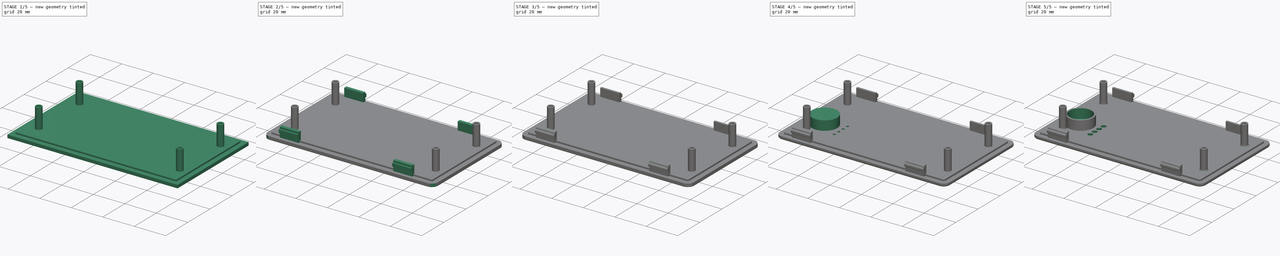
[diagram: build sequence overview — one tinted view per stage of 5, left to right]
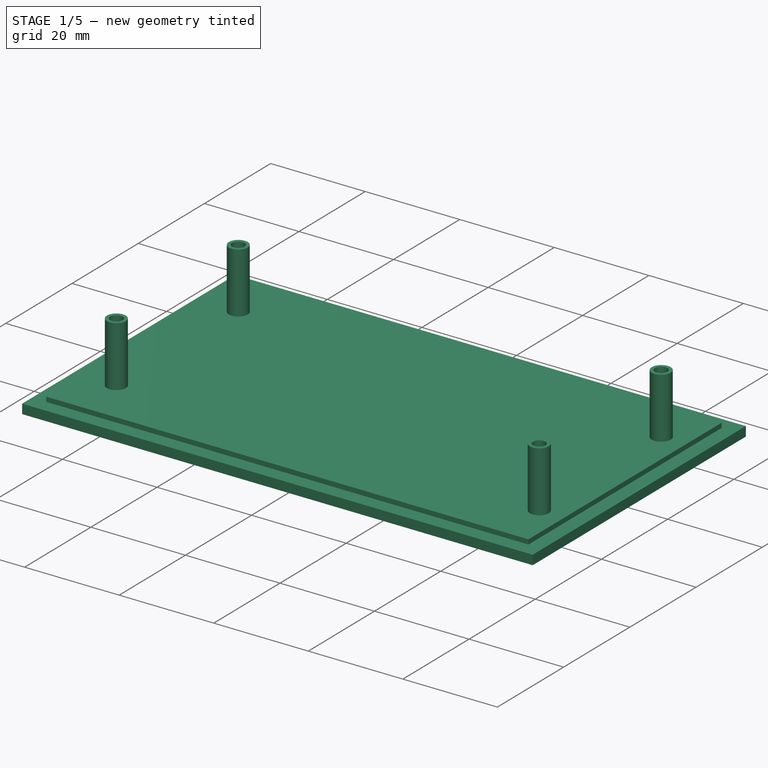
[diagram: stage 1 of 5 — iso view after this stage's code; geometry added in this stage tinted green]
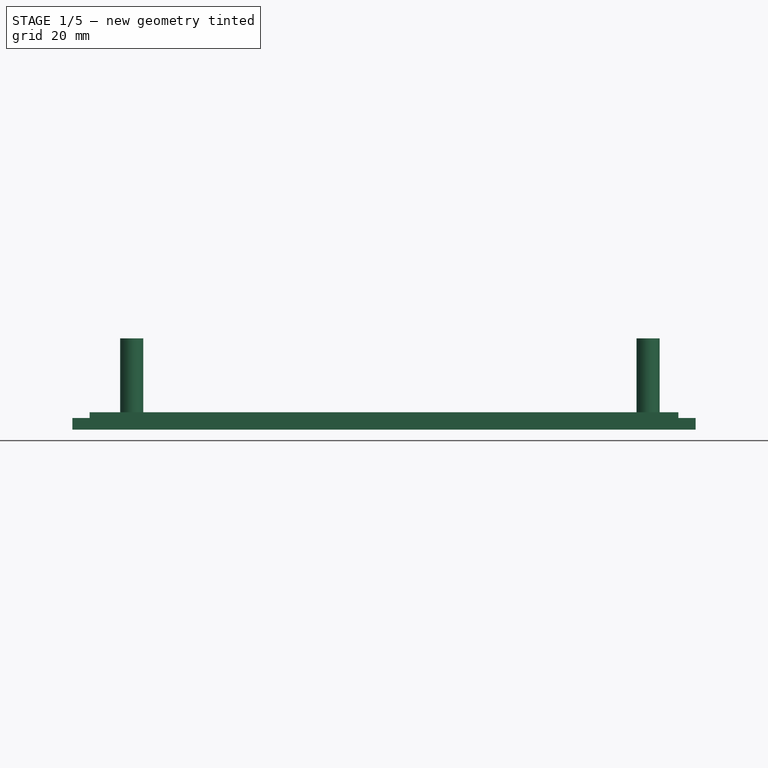
[diagram: stage 1 of 5 — front view after this stage's code; geometry added in this stage tinted green]
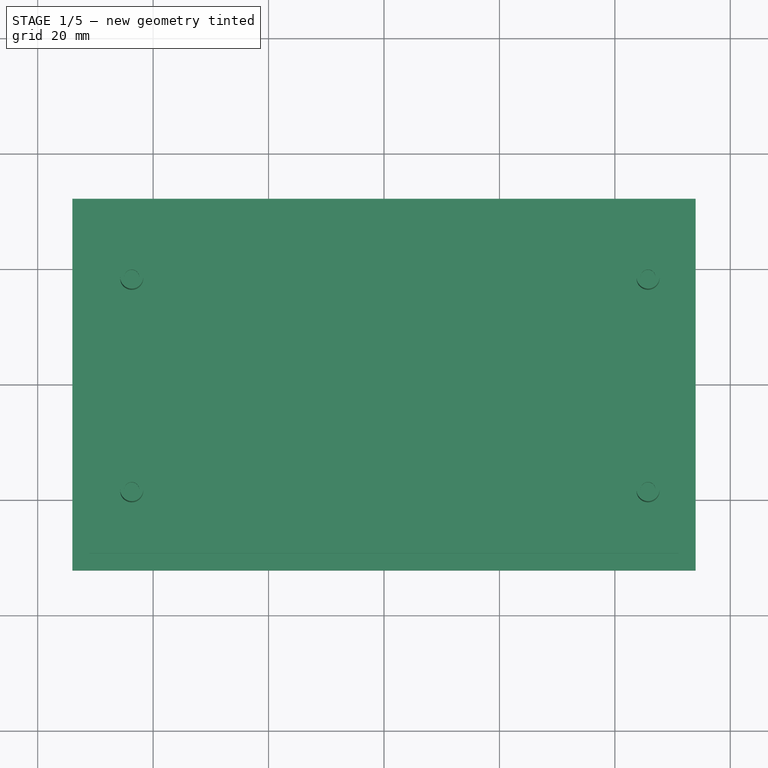
[diagram: stage 1 of 5 — top view after this stage's code; geometry added in this stage tinted green]
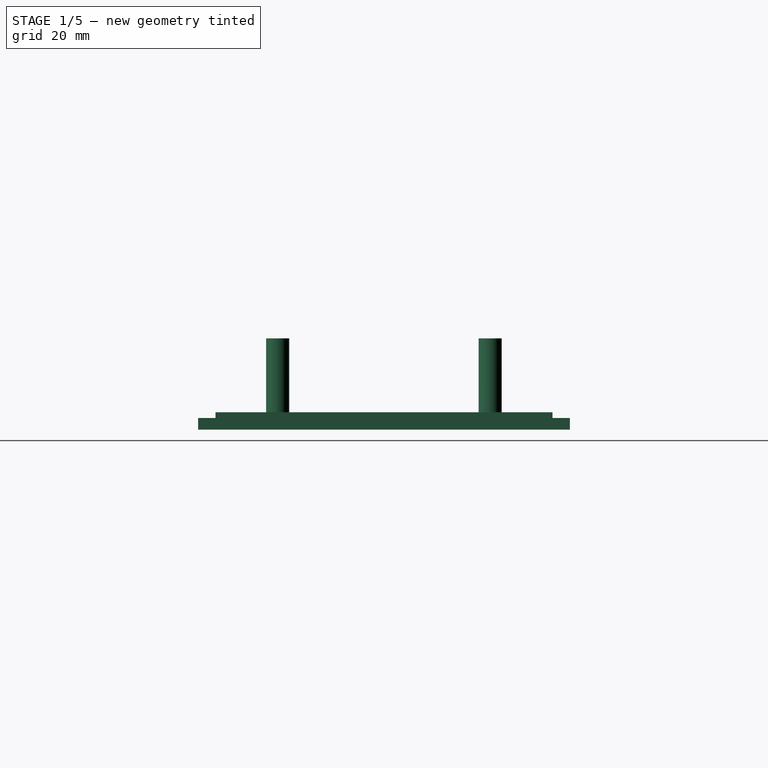
[diagram: stage 1 of 5 — right view after this stage's code; geometry added in this stage tinted green]
FCSTD DOCUMENT  (FreeCAD 0.17R13541 (Git))
Label: Case-Top-2
License: All rights reserved
LicenseURL: http://en.wikipedia.org/wiki/All_rights_reserved
objects: Sketcher::SketchObject×11, PartDesign::Pad×7, PartDesign::Fillet×7, Drawing::FeatureViewPart×6, PartDesign::Pocket×4, Drawing::FeatureViewPython×4, PartDesign::Chamfer×1, PartDesign::Body×1, Drawing::FeaturePage×1
note: 42 computed .brp shape members not serialized (recipe doc carries the construction recipe); baked Part::Feature solids carry a one-line shape summary decoded from their .brp

FEATURE [Sketcher::SketchObject] Sketch  label="Outer"
  MapMode = 5
  Support = -> [XY_Plane]
  sketch-geometry (8):
    g0: LineSegment [constr] StartX=-51 StartY=29.2 StartZ=0 EndX=51 EndY=29.2 EndZ=0
    g1: LineSegment [constr] StartX=51 StartY=29.2 StartZ=0 EndX=51 EndY=-29.2 EndZ=0
    g2: LineSegment [constr] StartX=51 StartY=-29.2 StartZ=0 EndX=-51 EndY=-29.2 EndZ=0
    g3: LineSegment [constr] StartX=-51 StartY=-29.2 StartZ=0 EndX=-51 EndY=29.2 EndZ=0
    g4: LineSegment StartX=-54 StartY=32.2 StartZ=0 EndX=54 EndY=32.2 EndZ=0
    g5: LineSegment StartX=54 StartY=32.2 StartZ=0 EndX=54 EndY=-32.2 EndZ=0
    g6: LineSegment StartX=54 StartY=-32.2 StartZ=0 EndX=-54 EndY=-32.2 EndZ=0
    g7: LineSegment StartX=-54 StartY=-32.2 StartZ=0 EndX=-54 EndY=32.2 EndZ=0
  constraints (24):
    c: Coincident(g0,g1)
    c: Coincident(g1,g2)
    c: Coincident(g2,g3)
    c: Coincident(g3,g0)
    c: Horizontal(g0)
    c: Horizontal(g2)
    c: Vertical(g1)
    c: Vertical(g3)
    c: Symmetric(g0,g0,g-2)
    c: Symmetric(g0,g1,g-1)
    c: Distance(g0) = 102
    c: DistanceY(g1,g1) = 58.4
    c: Coincident(g4,g5)
    c: Coincident(g5,g6)
    c: Coincident(g6,g7)
    c: Coincident(g7,g4)
    c: Horizontal(g4)
    c: Horizontal(g6)
    c: Vertical(g5)
    c: Vertical(g7)
    c: Symmetric(g4,g4,g-2)
    c: Symmetric(g4,g5,g-1)
    c: DistanceX(g4,g0) = 3
    c: DistanceY(g0,g4) = 3
FEATURE [PartDesign::Pad] Pad
  Length = 2
  Length2 = 100
  Profile = -> Sketch
  Type = 0
FEATURE [Sketcher::SketchObject] Sketch001  label="Inner"
  ExternalGeometry = -> [Pad]
  MapMode = 5
  Placement = pos=(0,0,2) rot=(0,0,1;0rad)
  Support = -> [Pad]
  sketch-geometry (4):
    g0: LineSegment StartX=-51 StartY=29.2 StartZ=0 EndX=51 EndY=29.2 EndZ=0
    g1: LineSegment StartX=51 StartY=29.2 StartZ=0 EndX=51 EndY=-29.2 EndZ=0
    g2: LineSegment StartX=51 StartY=-29.2 StartZ=0 EndX=-51 EndY=-29.2 EndZ=0
    g3: LineSegment StartX=-51 StartY=-29.2 StartZ=0 EndX=-51 EndY=29.2 EndZ=0
  constraints (12):
    c: Coincident(g0,g1)
    c: Coincident(g1,g2)
    c: Coincident(g2,g3)
    c: Coincident(g3,g0)
    c: Horizontal(g0)
    c: Horizontal(g2)
    c: Vertical(g1)
    c: Vertical(g3)
    c: Symmetric(g0,g0,g-2)
    c: Symmetric(g0,g1,g-1)
    c: DistanceX(g-3,g0) = 3
    c: DistanceY(g0,g-3) = 3
FEATURE [PartDesign::Pad] Pad001
  BaseFeature = -> Pad
  Length = 1
  Length2 = 100
  Profile = -> Sketch001
  Type = 0
FEATURE [Sketcher::SketchObject] Sketch002  label="PCB-Supporter"
  ExternalGeometry = -> [Pad001]
  MapMode = 5
  Placement = pos=(0,0,3) rot=(0,0,1;0rad)
  Support = -> [Pad001]
  sketch-geometry (4):
    g0: Circle CenterX=-43.71 CenterY=18.4 CenterZ=0 NormalX=0 NormalY=0 NormalZ=1 AngleXU=0 Radius=2
    g1: Circle CenterX=45.75 CenterY=18.4 CenterZ=0 NormalX=0 NormalY=0 NormalZ=1 AngleXU=0 Radius=2
    g2: Circle CenterX=-43.71 CenterY=-18.425 CenterZ=0 NormalX=0 NormalY=0 NormalZ=1 AngleXU=0 Radius=2
    g3: Circle CenterX=45.75 CenterY=-18.425 CenterZ=0 NormalX=0 NormalY=0 NormalZ=1 AngleXU=0 Radius=2
  constraints (12):
    c: Equal(g0,g1)
    c: Equal(g1,g3)
    c: Equal(g3,g2)
    c: Radius(g1) = 2
    c: Vertical(g0,g2)
    c: Vertical(g1,g3)
    c: Horizontal(g0,g1)
    c: Horizontal(g2,g3)
    c: DistanceX(g-4,g0) = 7.29
    c: DistanceX(g-4,g1) = 96.75
    c: DistanceY(g0,g-4) = 10.8
    c: DistanceY(g2,g-4) = 47.625
FEATURE [PartDesign::Pad] Pad002
  BaseFeature = -> Pad001
  Length = 12.8
  Length2 = 100
  Profile = -> Sketch002
  Type = 0
FEATURE [Sketcher::SketchObject] Sketch003  label="PCB-Hole"
  AttachmentOffset = pos=(0,0,16.8) rot=(0,0,1;0rad)
  ExternalGeometry = -> [Pad002]
  MapMode = 5
  Placement = pos=(0,0,16.8) rot=(0,0,1;0rad)
  Support = -> [XY_Plane]
  sketch-geometry (4):
    g0: Circle CenterX=-43.71 CenterY=18.4 CenterZ=0 NormalX=0 NormalY=0 NormalZ=1 AngleXU=0 Radius=1.3
    g1: Circle CenterX=45.75 CenterY=18.4 CenterZ=0 NormalX=0 NormalY=0 NormalZ=1 AngleXU=0 Radius=1.3
    g2: Circle CenterX=45.75 CenterY=-18.425 CenterZ=0 NormalX=0 NormalY=0 NormalZ=1 AngleXU=0 Radius=1.3
    g3: Circle CenterX=-43.71 CenterY=-18.425 CenterZ=0 NormalX=0 NormalY=0 NormalZ=1 AngleXU=0 Radius=1.3
  constraints (8):
    c: Coincident(g1,g-4)
    c: Coincident(g2,g-6)
    c: Coincident(g3,g-5)
    c: Coincident(g0,g-3)
    c: Radius(g0) = 1.3
    c: Equal(g0,g3)
    c: Equal(g0,g1)
    c: Equal(g0,g2)
FEATURE [PartDesign::Pocket] Pocket
  BaseFeature = -> Pad002
  Length = 4
  Length2 = 100
  Profile = -> Sketch003
  Type = 0
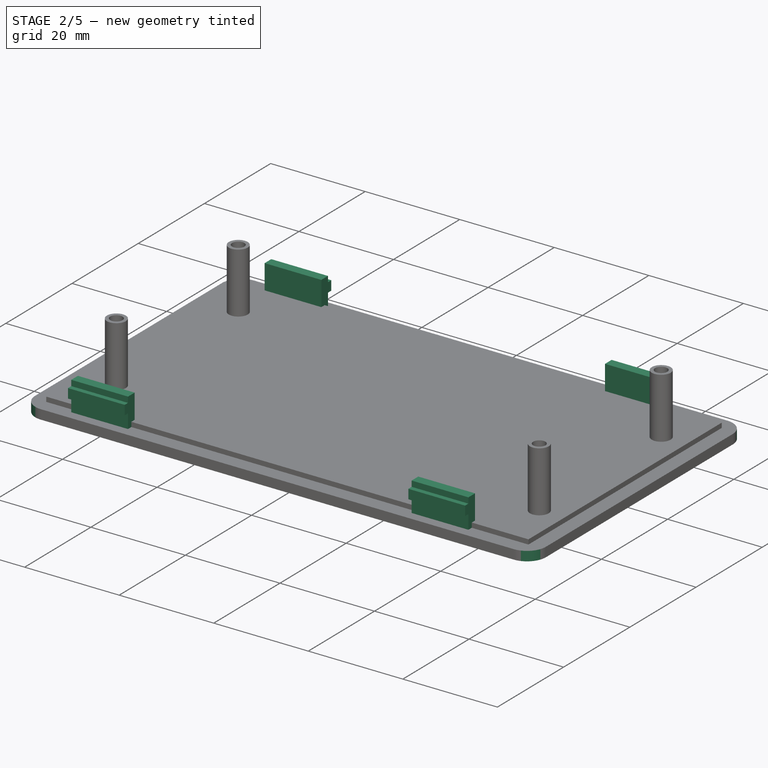
[diagram: stage 2 of 5 — iso view after this stage's code; geometry added in this stage tinted green]
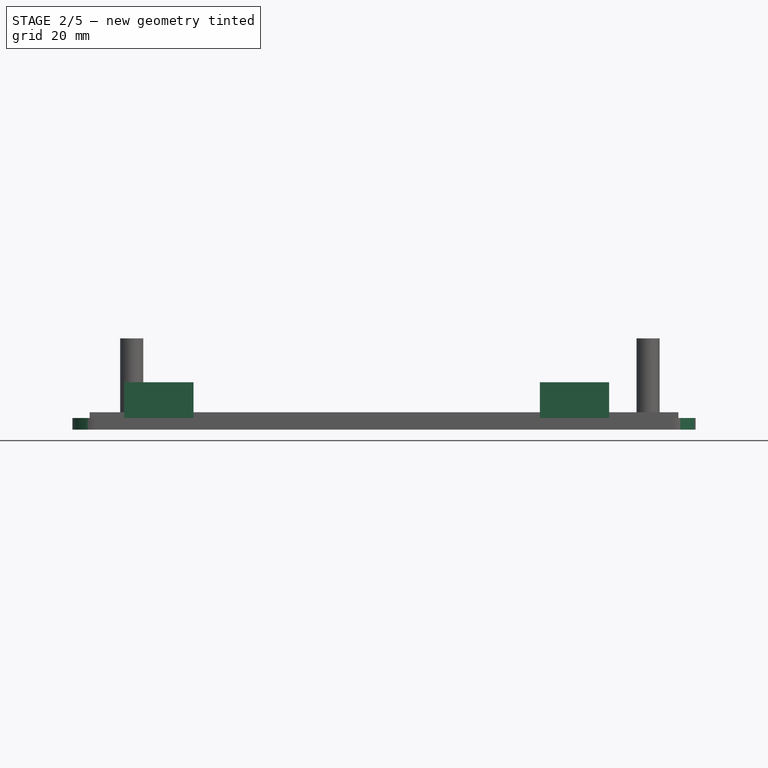
[diagram: stage 2 of 5 — front view after this stage's code; geometry added in this stage tinted green]
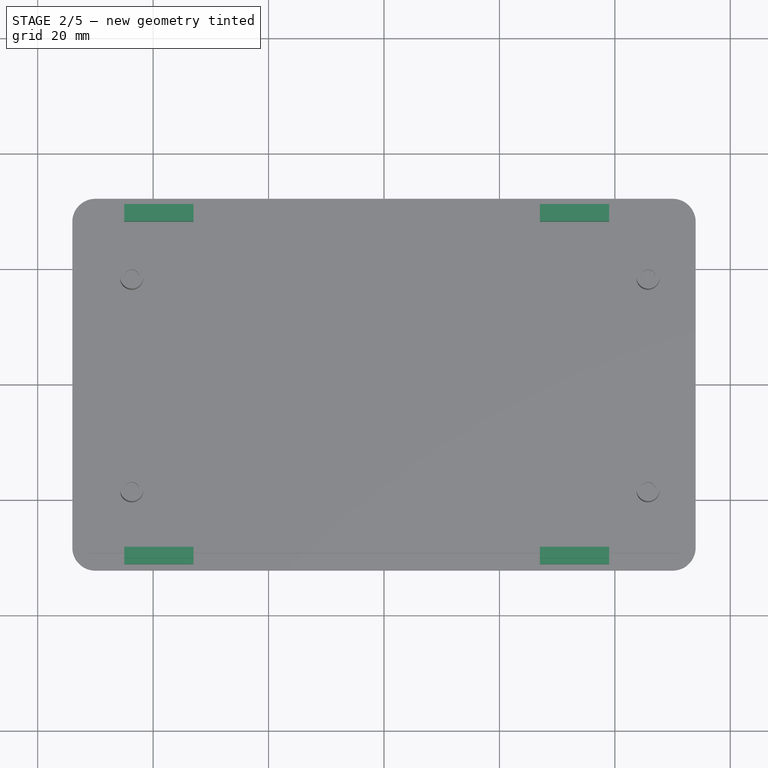
[diagram: stage 2 of 5 — top view after this stage's code; geometry added in this stage tinted green]
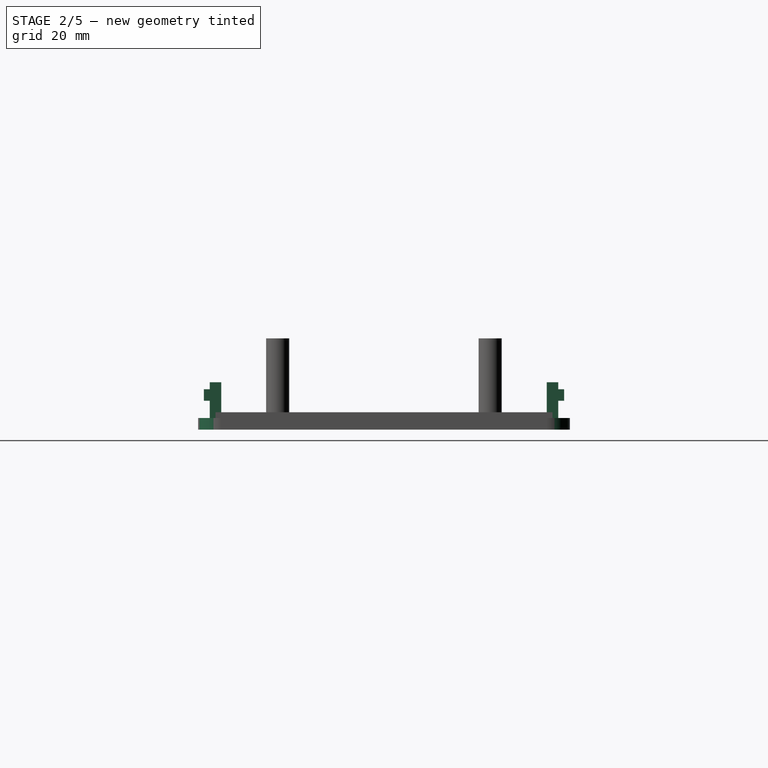
[diagram: stage 2 of 5 — right view after this stage's code; geometry added in this stage tinted green]
FEATURE [Sketcher::SketchObject] Sketch004  label="Locking-Bar"
  AttachmentOffset = pos=(0,0,-1) rot=(0,0,1;0rad)
  ExternalGeometry = -> [Pocket]
  MapMode = 5
  Placement = pos=(0,0,2) rot=(0,0,1;0rad)
  Support = -> [Pocket]
  sketch-geometry (16):
    g0: LineSegment StartX=-45 StartY=30.2 StartZ=0 EndX=-33 EndY=30.2 EndZ=0
    g1: LineSegment StartX=-33 StartY=30.2 StartZ=0 EndX=-33 EndY=28.2 EndZ=0
    g2: LineSegment StartX=-33 StartY=28.2 StartZ=0 EndX=-45 EndY=28.2 EndZ=0
    g3: LineSegment StartX=-45 StartY=28.2 StartZ=0 EndX=-45 EndY=30.2 EndZ=0
    g4: LineSegment StartX=27 StartY=30.2 StartZ=0 EndX=39 EndY=30.2 EndZ=0
    g5: LineSegment StartX=39 StartY=30.2 StartZ=0 EndX=39 EndY=28.2 EndZ=0
    g6: LineSegment StartX=39 StartY=28.2 StartZ=0 EndX=27 EndY=28.2 EndZ=0
    g7: LineSegment StartX=27 StartY=28.2 StartZ=0 EndX=27 EndY=30.2 EndZ=0
    g8: LineSegment StartX=-45 StartY=-28.2 StartZ=0 EndX=-33 EndY=-28.2 EndZ=0
    g9: LineSegment StartX=-33 StartY=-28.2 StartZ=0 EndX=-33 EndY=-30.2 EndZ=0
    g10: LineSegment StartX=-33 StartY=-30.2 StartZ=0 EndX=-45 EndY=-30.2 EndZ=0
    g11: LineSegment StartX=-45 StartY=-30.2 StartZ=0 EndX=-45 EndY=-28.2 EndZ=0
    g12: LineSegment StartX=27 StartY=-28.2 StartZ=0 EndX=39 EndY=-28.2 EndZ=0
    g13: LineSegment StartX=39 StartY=-28.2 StartZ=0 EndX=39 EndY=-30.2 EndZ=0
    g14: LineSegment StartX=39 StartY=-30.2 StartZ=0 EndX=27 EndY=-30.2 EndZ=0
    g15: LineSegment StartX=27 StartY=-30.2 StartZ=0 EndX=27 EndY=-28.2 EndZ=0
  constraints (48):
    c: Coincident(g0,g1)
    c: Coincident(g1,g2)
    c: Coincident(g2,g3)
    c: Coincident(g3,g0)
    c: Horizontal(g0)
    c: Horizontal(g2)
    c: Vertical(g1)
    c: Vertical(g3)
    c: Coincident(g4,g5)
    c: Coincident(g5,g6)
    c: Coincident(g6,g7)
    c: Coincident(g7,g4)
    c: Horizontal(g4)
    c: Horizontal(g6)
    c: Vertical(g5)
    c: Vertical(g7)
    c: Coincident(g8,g9)
    c: Coincident(g9,g10)
    c: Coincident(g10,g11)
    c: Coincident(g11,g8)
    c: Horizontal(g8)
    c: Horizontal(g10)
    c: Vertical(g9)
    c: Vertical(g11)
    c: Coincident(g12,g13)
    c: Coincident(g13,g14)
    c: Coincident(g14,g15)
    c: Coincident(g15,g12)
    c: Horizontal(g12)
    c: Horizontal(g14)
    c: Vertical(g13)
    c: Vertical(g15)
    c: Equal(g0,g4)
    c: Equal(g4,g12)
    c: Equal(g12,g8)
    c: Equal(g1,g5)
    c: Equal(g5,g13)
    c: Equal(g13,g9)
    c: DistanceY(g3,g3) = 2
    c: DistanceX(g0,g0) = 12
    c: DistanceX(g4,g-3) = 12
    c: DistanceX(g0,g-3) = 84
    c: Vertical(g1,g8)
    c: Vertical(g5,g13)
    c: DistanceY(g-4,g10) = -1
    c: DistanceY(g-3,g0) = 1
    c: Horizontal(g9,g14)
    c: Horizontal(g1,g6)
FEATURE [PartDesign::Pad] Pad003
  BaseFeature = -> Pocket
  Length = 6.2
  Length2 = 100
  Profile = -> Sketch004
  Type = 0
FEATURE [Sketcher::SketchObject] Sketch005  label="Locking-Bump-L"
  ExternalGeometry = -> [Pad003]
  MapMode = 5
  Placement = pos=(0,-30.2,0) rot=(1,0,0;1.5708rad)
  Support = -> [Pad003]
  sketch-geometry (8):
    g0: LineSegment StartX=39 StartY=7 StartZ=0 EndX=27 EndY=7 EndZ=0
    g1: LineSegment StartX=27 StartY=7 StartZ=0 EndX=27 EndY=5 EndZ=0
    g2: LineSegment StartX=27 StartY=5 StartZ=0 EndX=39 EndY=5 EndZ=0
    g3: LineSegment StartX=39 StartY=5 StartZ=0 EndX=39 EndY=7 EndZ=0
    g4: LineSegment StartX=-33 StartY=7 StartZ=0 EndX=-45 EndY=7 EndZ=0
    g5: LineSegment StartX=-45 StartY=7 StartZ=0 EndX=-45 EndY=5 EndZ=0
    g6: LineSegment StartX=-45 StartY=5 StartZ=0 EndX=-33 EndY=5 EndZ=0
    g7: LineSegment StartX=-33 StartY=5 StartZ=0 EndX=-33 EndY=7 EndZ=0
  constraints (24):
    c: Coincident(g0,g1)
    c: Coincident(g1,g2)
    c: Coincident(g2,g3)
    c: Coincident(g3,g0)
    c: Horizontal(g0)
    c: Horizontal(g2)
    c: Vertical(g1)
    c: Vertical(g3)
    c: Coincident(g4,g5)
    c: Coincident(g5,g6)
    c: Coincident(g6,g7)
    c: Coincident(g7,g4)
    c: Horizontal(g4)
    c: Horizontal(g6)
    c: Vertical(g5)
    c: Vertical(g7)
    c: Equal(g1,g7)
    c: DistanceY(g5,g5) = 2
    c: Horizontal(g1,g6)
    c: DistanceY(g-3,g1) = 2
    c: Vertical(g5,g-4)
    c: Vertical(g6,g-4)
    c: Vertical(g1,g-3)
    c: Vertical(g-3,g2)
FEATURE [PartDesign::Pad] Pad004
  BaseFeature = -> Pad003
  Length = 1
  Length2 = 100
  Profile = -> Sketch005
  Type = 0
FEATURE [Sketcher::SketchObject] Sketch006  label="Locking-Bump-R"
  ExternalGeometry = -> [Pad004]
  MapMode = 5
  Placement = pos=(0,30.2,0) rot=(0,0.707107,0.707107;3.14159rad)
  sketch-geometry (8):
    g0: LineSegment StartX=-39 StartY=7 StartZ=0 EndX=-27 EndY=7 EndZ=0
    g1: LineSegment StartX=-27 StartY=7 StartZ=0 EndX=-27 EndY=5 EndZ=0
    g2: LineSegment StartX=-27 StartY=5 StartZ=0 EndX=-39 EndY=5 EndZ=0
    g3: LineSegment StartX=-39 StartY=5 StartZ=0 EndX=-39 EndY=7 EndZ=0
    g4: LineSegment StartX=33 StartY=7 StartZ=0 EndX=45 EndY=7 EndZ=0
    g5: LineSegment StartX=45 StartY=7 StartZ=0 EndX=45 EndY=5 EndZ=0
    g6: LineSegment StartX=45 StartY=5 StartZ=0 EndX=33 EndY=5 EndZ=0
    g7: LineSegment StartX=33 StartY=5 StartZ=0 EndX=33 EndY=7 EndZ=0
  constraints (24):
    c: Coincident(g0,g1)
    c: Coincident(g1,g2)
    c: Coincident(g2,g3)
    c: Coincident(g3,g0)
    c: Horizontal(g0)
    c: Horizontal(g2)
    c: Vertical(g1)
    c: Vertical(g3)
    c: Coincident(g4,g5)
    c: Coincident(g5,g6)
    c: Coincident(g6,g7)
    c: Coincident(g7,g4)
    c: Horizontal(g4)
    c: Horizontal(g6)
    c: Vertical(g5)
    c: Vertical(g7)
    c: Vertical(g2,g-3)
    c: Vertical(g-3,g1)
    c: Vertical(g-4,g6)
    c: Vertical(g-4,g5)
    c: Horizontal(g1,g6)
    c: Equal(g3,g5)
    c: DistanceY(g3,g3) = 2
    c: DistanceY(g-3,g1) = 2
FEATURE [PartDesign::Pad] Pad005
  BaseFeature = -> Pad004
  Length = 1
  Length2 = 100
  Profile = -> Sketch006
  Type = 0
FEATURE [PartDesign::Fillet] Fillet  label="Fillet-Outer"
  Base = -> Pad005 [Edge1,Edge2,Edge5,Edge8]
  BaseFeature = -> Pad005
  Radius = 4
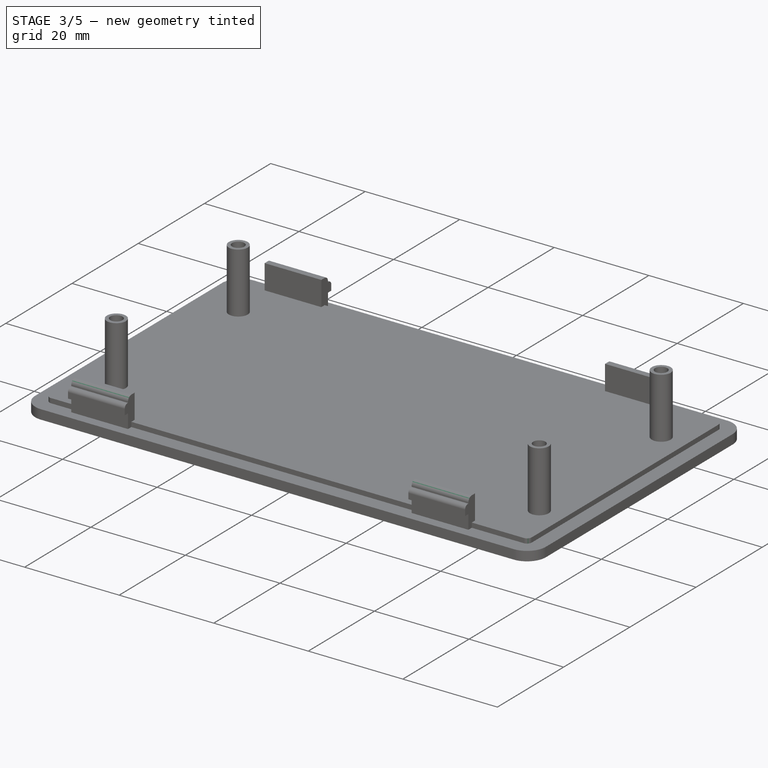
[diagram: stage 3 of 5 — iso view after this stage's code; geometry added in this stage tinted green]
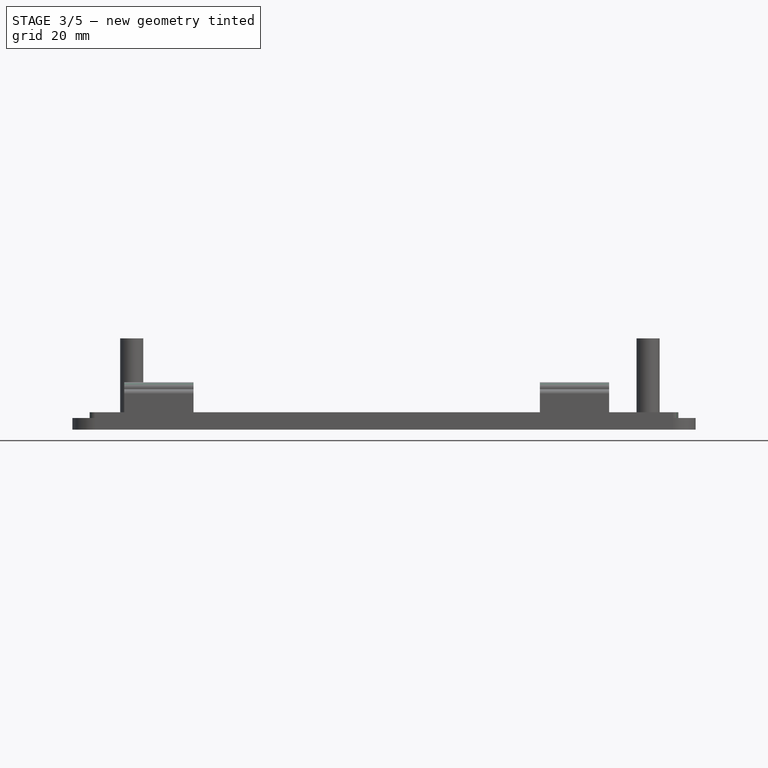
[diagram: stage 3 of 5 — front view after this stage's code; geometry added in this stage tinted green]
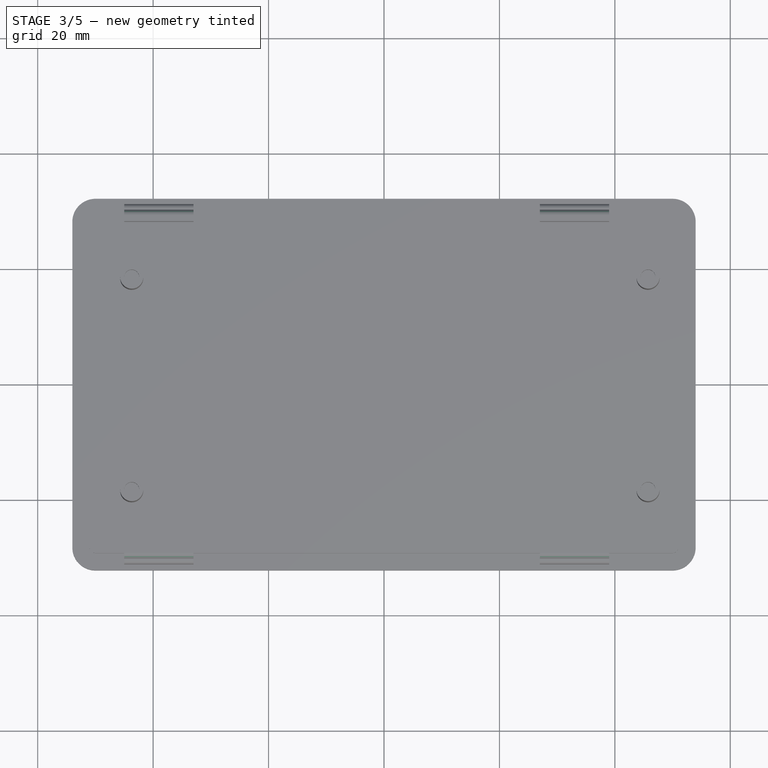
[diagram: stage 3 of 5 — top view after this stage's code; geometry added in this stage tinted green]
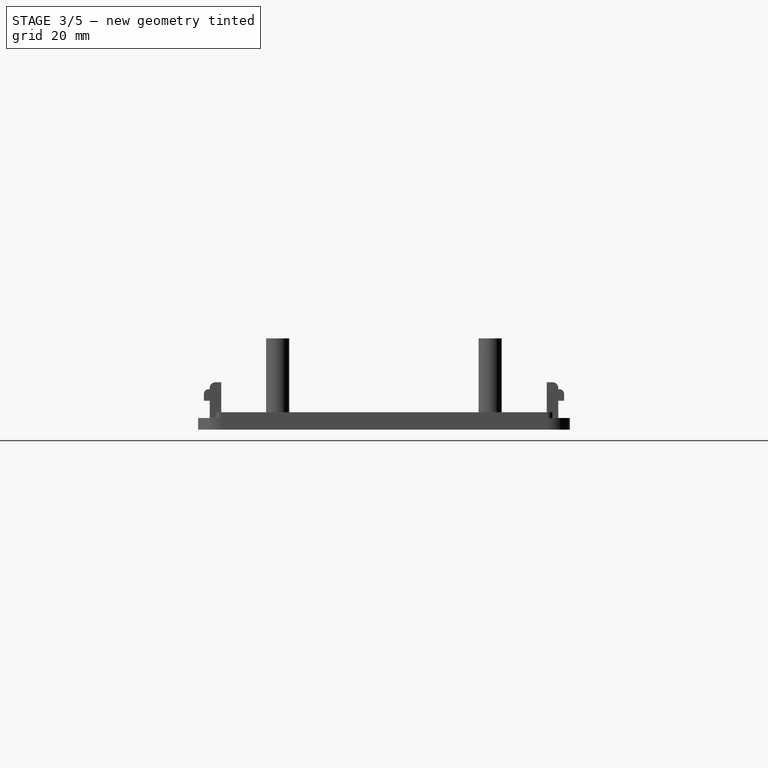
[diagram: stage 3 of 5 — right view after this stage's code; geometry added in this stage tinted green]
FEATURE [PartDesign::Fillet] Fillet001  label="Fillet-Inner"
  Base = -> Fillet [Edge47,Edge114,Edge81,Edge78]
  BaseFeature = -> Fillet
  Radius = 1
FEATURE [PartDesign::Fillet] Fillet002  label="Fillet-Locking-Bar"
  Base = -> Fillet001 [Edge151,Edge171,Edge154,Edge138]
  BaseFeature = -> Fillet001
  Radius = 1
FEATURE [PartDesign::Fillet] Fillet003  label="Fillet-Locking-Bump-Up"
  Base = -> Fillet002 [Edge85,Edge204,Edge202,Edge203]
  BaseFeature = -> Fillet002
  Radius = 0.8
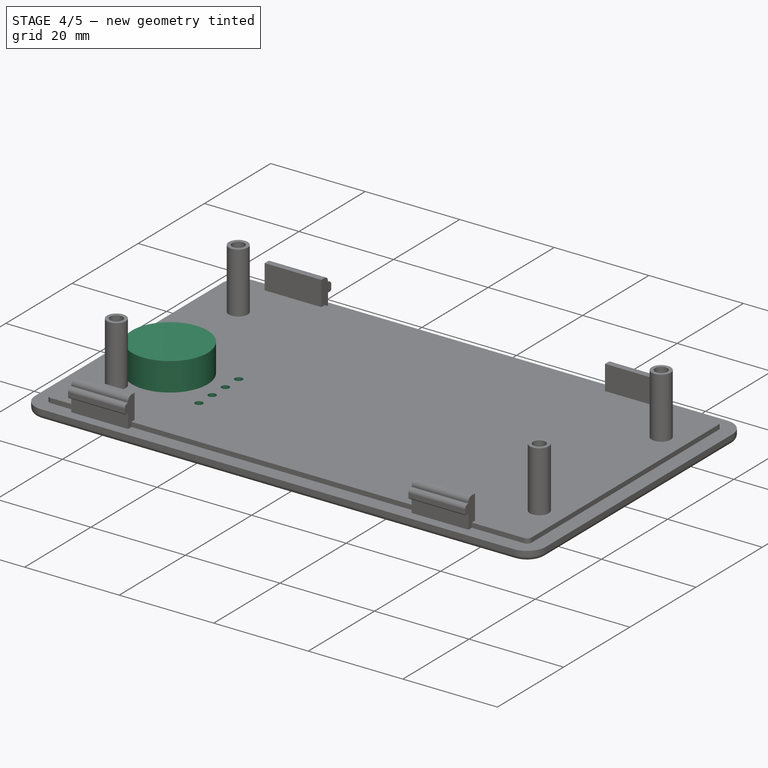
[diagram: stage 4 of 5 — iso view after this stage's code; geometry added in this stage tinted green]
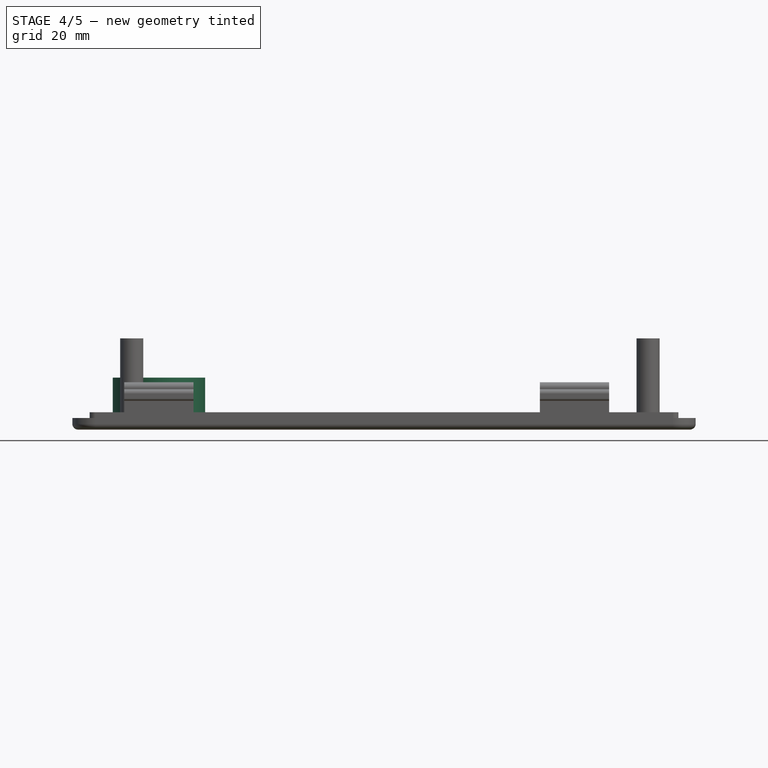
[diagram: stage 4 of 5 — front view after this stage's code; geometry added in this stage tinted green]
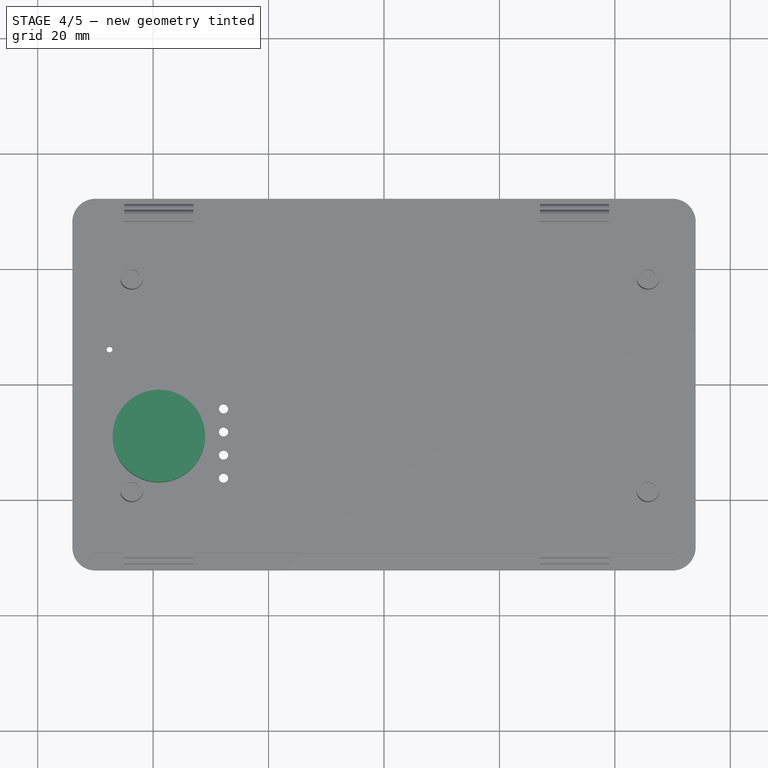
[diagram: stage 4 of 5 — top view after this stage's code; geometry added in this stage tinted green]
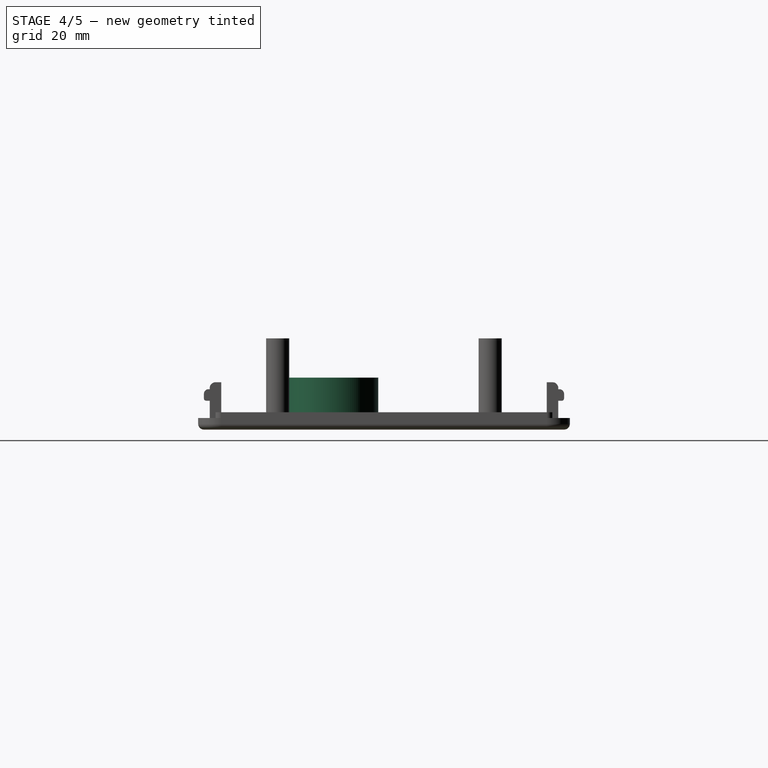
[diagram: stage 4 of 5 — right view after this stage's code; geometry added in this stage tinted green]
FEATURE [PartDesign::Fillet] Fillet004  label="Fillet-Locking-Bump-Bottom"
  Base = -> Fillet003 [Edge210,Edge208,Edge19,Edge209]
  BaseFeature = -> Fillet003
  Radius = 0.4
FEATURE [PartDesign::Fillet] Fillet005  label="Fillet-Top"
  Base = -> Fillet004 [Edge173]
  BaseFeature = -> Fillet004
  Radius = 1
FEATURE [Sketcher::SketchObject] Sketch007  label="Top-Hole"
  ExternalGeometry = -> [Fillet005]
  MapMode = 5
  Placement = pos=(0,0,3) rot=(0,0,1;0rad)
  Support = -> [Fillet005]
  sketch-geometry (20):
    g0: Circle CenterX=-39 CenterY=-9 CenterZ=0 NormalX=0 NormalY=0 NormalZ=1 AngleXU=0 Radius=1.2
    g1: Circle CenterX=-27.8 CenterY=-4.2 CenterZ=0 NormalX=0 NormalY=0 NormalZ=1 AngleXU=0 Radius=0.8
    g2: Circle CenterX=-27.8 CenterY=-8.2 CenterZ=0 NormalX=0 NormalY=0 NormalZ=1 AngleXU=0 Radius=0.8
    g3: Circle CenterX=-27.8 CenterY=-12.2 CenterZ=0 NormalX=0 NormalY=0 NormalZ=1 AngleXU=0 Radius=0.8
    g4: Circle CenterX=-27.8 CenterY=-16.2 CenterZ=0 NormalX=0 NormalY=0 NormalZ=1 AngleXU=0 Radius=0.8
    g5: Circle CenterX=-47.56 CenterY=6.08 CenterZ=0 NormalX=0 NormalY=0 NormalZ=1 AngleXU=0 Radius=0.5
    g6: Circle CenterX=-41.5981 CenterY=-7.5 CenterZ=0 NormalX=0 NormalY=0 NormalZ=1 AngleXU=0 Radius=0.6
    g7: Circle CenterX=-39 CenterY=-6 CenterZ=0 NormalX=0 NormalY=0 NormalZ=1 AngleXU=0 Radius=0.6
    g8: Circle CenterX=-36.4019 CenterY=-10.5 CenterZ=0 NormalX=0 NormalY=0 NormalZ=1 AngleXU=0 Radius=0.6
    g9: Circle CenterX=-41.5981 CenterY=-10.5 CenterZ=0 NormalX=0 NormalY=0 NormalZ=1 AngleXU=0 Radius=0.6
    g10: LineSegment [constr] StartX=-36.4019 StartY=-10.5 StartZ=0 EndX=-36.4019 EndY=-7.5 EndZ=0
    g11: LineSegment [constr] StartX=-36.4019 StartY=-7.5 StartZ=0 EndX=-39 EndY=-6 EndZ=0
    g12: LineSegment [constr] StartX=-39 StartY=-6 StartZ=0 EndX=-41.5981 EndY=-7.5 EndZ=0
    g13: LineSegment [constr] StartX=-41.5981 StartY=-7.5 StartZ=0 EndX=-41.5981 EndY=-10.5 EndZ=0
    g14: LineSegment [constr] StartX=-41.5981 StartY=-10.5 StartZ=0 EndX=-39 EndY=-12 EndZ=0
    g15: LineSegment [constr] StartX=-39 StartY=-12 StartZ=0 EndX=-36.4019 EndY=-10.5 EndZ=0
    g16: Circle CenterX=-39 CenterY=-12 CenterZ=0 NormalX=0 NormalY=0 NormalZ=1 AngleXU=0 Radius=0.6
    g17: Circle CenterX=-36.4019 CenterY=-7.5 CenterZ=0 NormalX=0 NormalY=0 NormalZ=1 AngleXU=0 Radius=0.6
    g18: LineSegment [constr] StartX=-39 StartY=-9 StartZ=0 EndX=-41.5981 EndY=-10.5 EndZ=0
    g19: Circle [constr] CenterX=-39 CenterY=-9 CenterZ=0 NormalX=0 NormalY=0 NormalZ=1 AngleXU=0 Radius=3
  constraints (48):
    c: DistanceX(g0,g-6) = 90
    c: DistanceY(g-5,g0) = 20.2
    c: Vertical(g1,g2)
    c: Vertical(g2,g3)
    c: Vertical(g3,g4)
    c: Radius(g1) = 0.8
    c: Equal(g1,g2)
    c: Equal(g1,g3)
    c: Equal(g1,g4)
    c: DistanceX(g4,g-6) = 78.8
    c: DistanceY(g-5,g4) = 13
    c: DistanceY(g4,g3) = 4
    c: DistanceY(g3,g2) = 4
    c: DistanceY(g2,g1) = 4
    c: DistanceX(g5,g-6) = 98.56
    c: DistanceY(g-5,g5) = 35.28
    c: Radius(g0) = 1.2
    c: Radius(g5) = 0.5
    c: Radius(g7) = 0.6
    c: Equal(g7,g9)
    c: Coincident(g10,g11)
    c: Coincident(g11,g12)
    c: Coincident(g12,g13)
    c: Coincident(g13,g14)
    c: Coincident(g14,g15)
    c: Coincident(g15,g10)
    c: Equal(g10, g11-g15) x5
    c: Coincident(g7,g11)
    c: Coincident(g6,g12)
    c: Coincident(g9,g13)
    c: Coincident(g8,g10)
    c: Coincident(g16,g14)
    c: Coincident(g17,g10)
    c: Equal(g6,g7)
    c: Equal(g7,g17)
    c: Equal(g17,g8)
    c: Equal(g8,g16)
    c: Vertical(g14,g0)
    c: Coincident(g18,g0)
    c: Coincident(g18,g9)
    c: Distance(g18) = 3
    c: Coincident(g0,g19)
    c: PointOnObject(g10,g19)
    c: PointOnObject(g7,g19)
    c: PointOnObject(g6,g19)
    c: PointOnObject(g9,g19)
    c: PointOnObject(g14,g19)
    c: PointOnObject(g8,g19)
FEATURE [PartDesign::Pocket] Pocket001
  BaseFeature = -> Fillet005
  Length = 5
  Length2 = 100
  Profile = -> Sketch007
  Type = 1
FEATURE [Sketcher::SketchObject] Sketch009  label="Buzzer-Inner"
  ExternalGeometry = -> [Pocket001]
  MapMode = 5
  Placement = pos=(0,0,9) rot=(0,0,1;0rad)
  sketch-geometry (1):
    g0: Circle CenterX=-39 CenterY=-9 CenterZ=0 NormalX=0 NormalY=0 NormalZ=1 AngleXU=0 Radius=7
  constraints (2):
    c: Radius(g0) = 7
    c: Coincident(g0,g-3)
FEATURE [Sketcher::SketchObject] Sketch010  label="LED-Sunken"
  MapMode = 5
  Placement = pos=(0,0,3) rot=(0,0,1;0rad)
  sketch-geometry (4):
    g0: Circle CenterX=-27.8 CenterY=-4.2 CenterZ=0 NormalX=0 NormalY=0 NormalZ=1 AngleXU=0 Radius=1.5
    g1: Circle CenterX=-27.8 CenterY=-8.2 CenterZ=0 NormalX=0 NormalY=0 NormalZ=1 AngleXU=0 Radius=1.5
    g2: Circle CenterX=-27.8 CenterY=-12.2 CenterZ=0 NormalX=0 NormalY=0 NormalZ=1 AngleXU=0 Radius=1.5
    g3: Circle CenterX=-27.8 CenterY=-16.2 CenterZ=0 NormalX=0 NormalY=0 NormalZ=1 AngleXU=0 Radius=1.5
  constraints (4):
    c: Radius(g0) = 1.5
    c: Equal(g0,g1)
    c: Equal(g0,g2)
    c: Equal(g0,g3)
FEATURE [Sketcher::SketchObject] Sketch011  label="Buzzer-Outer"
  ExternalGeometry = -> [Pocket001]
  MapMode = 5
  Placement = pos=(0,0,3) rot=(0,0,1;0rad)
  Support = -> [Pocket001]
  sketch-geometry (1):
    g0: Circle CenterX=-39 CenterY=-9 CenterZ=0 NormalX=0 NormalY=0 NormalZ=1 AngleXU=0 Radius=8
  constraints (2):
    c: Coincident(g0,g-3)
    c: Radius(g0) = 8
FEATURE [PartDesign::Pad] Pad006
  BaseFeature = -> Pocket001
  Length = 6
  Length2 = 100
  Profile = -> Sketch011
  Type = 0
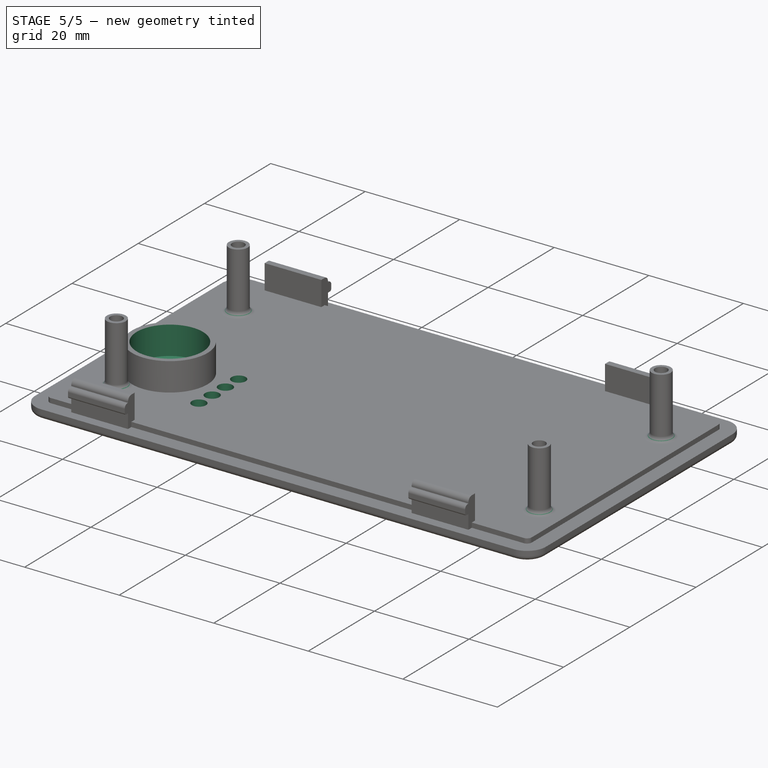
[diagram: stage 5 of 5 — iso view after this stage's code; geometry added in this stage tinted green]
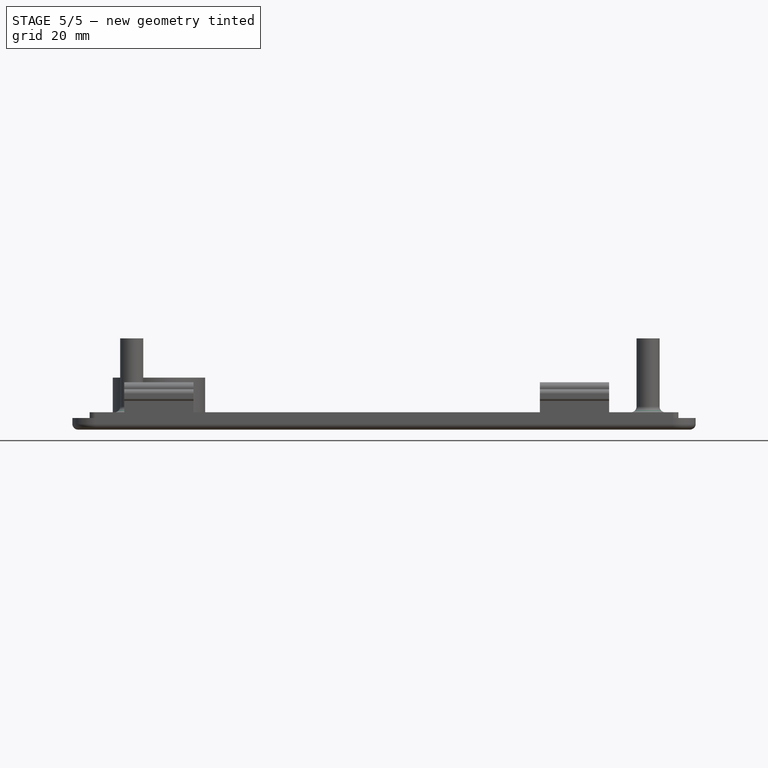
[diagram: stage 5 of 5 — front view after this stage's code; geometry added in this stage tinted green]
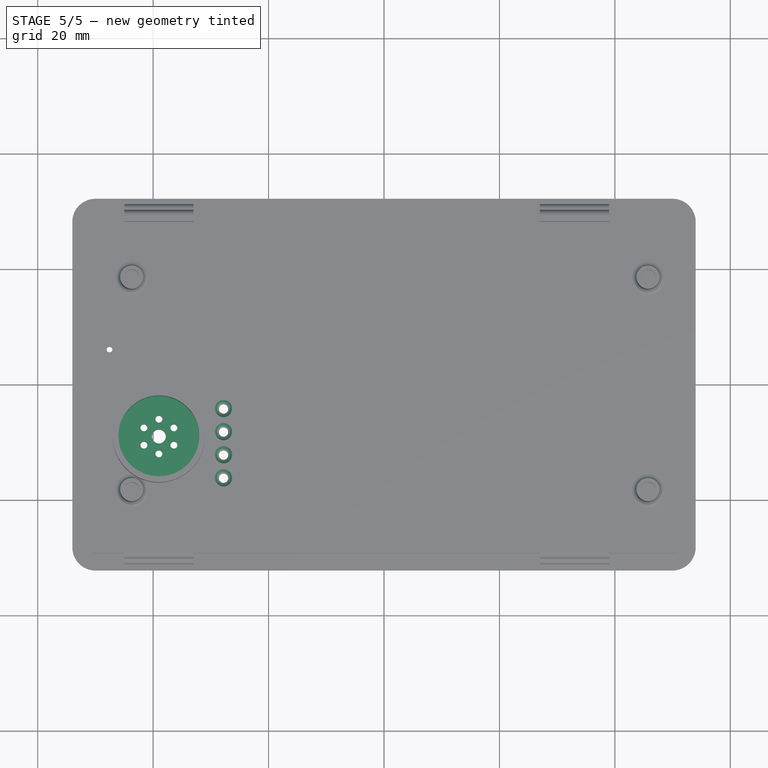
[diagram: stage 5 of 5 — top view after this stage's code; geometry added in this stage tinted green]
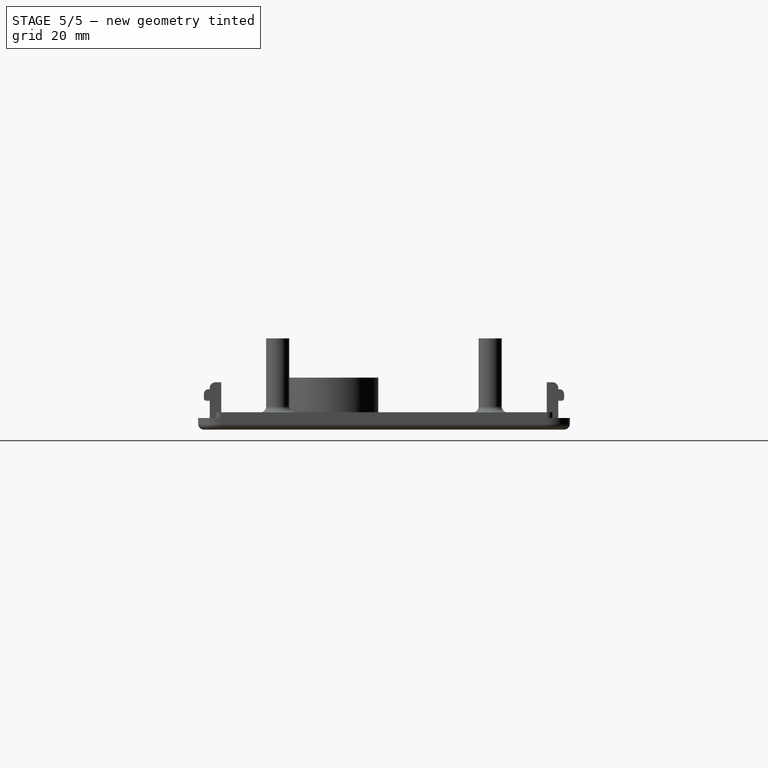
[diagram: stage 5 of 5 — right view after this stage's code; geometry added in this stage tinted green]
FEATURE [PartDesign::Pocket] Pocket002
  BaseFeature = -> Pad006
  Length = 6
  Length2 = 100
  Profile = -> Sketch009
  Type = 0
FEATURE [PartDesign::Pocket] Pocket003
  BaseFeature = -> Pocket002
  Length = 2
  Length2 = 100
  Profile = -> Sketch010
  Type = 0
FEATURE [PartDesign::Chamfer] Chamfer
  Base = -> Pocket003 [Edge187,Edge179,Edge169,Edge171]
  BaseFeature = -> Pocket003
  Size = 0.6
FEATURE [PartDesign::Fillet] Fillet006
  Base = -> Chamfer [Edge117,Edge115,Edge111,Edge114]
  BaseFeature = -> Chamfer
  Radius = 1
FEATURE [PartDesign::Body] Body
  Group = -> [Sketch,Pad,Sketch001,Pad001,Sketch002,Pad002,Sketch003,Pocket,Sketch004,Pad003,Sketch005,Sketch006,Pad004,Pad005,Fillet,Fillet001,Fillet002,Fillet003,Fillet004,Fillet005,Sketch007,Pocket001,Sketch009,Sketch010,Sketch011,Pad006,Pocket002,Pocket003,Chamfer,Fillet006]
  Origin = -> Origin
  Tip = -> Fillet006
FEATURE [Drawing::FeatureViewPart] Ortho  label="Ortho_0_0"
  Direction = (1,0,0)
  HiddenWidth = 0.15
  LineWidth = 0.35
  Rotation = -90
  ShowHiddenLines = false
  ShowSmoothLines = false
  Source = -> Fillet006
  Tolerance = 0.05
  ViewResult = <blob: 7059 chars omitted>
  Visible = false
  X = 210
  Y = 195.933
FEATURE [Drawing::FeatureViewPart] Ortho001  label="Ortho_1_0"
  Direction = (0,1,0)
  HiddenWidth = 0.15
  LineWidth = 0.35
  Rotation = -90
  ShowHiddenLines = false
  ShowSmoothLines = false
  Source = -> Fillet006
  Tolerance = 0.05
  ViewResult = <blob: 7523 chars omitted>
  Visible = false
  X = 326.1
  Y = 195.933
FEATURE [Drawing::FeatureViewPart] Ortho002  label="Ortho_1_1"
  Direction = (0.57735,0.57735,0.57735)
  HiddenWidth = 0.15
  LineWidth = 0.35
  Rotation = 120
  ShowHiddenLines = false
  ShowSmoothLines = false
  Source = -> Fillet006
  Tolerance = 0.05
  ViewResult = <blob: 14486 chars omitted>
  Visible = false
  X = 326.1
  Y = 101.517
FEATURE [Drawing::FeatureViewPart] Ortho003  label="Ortho_-1_1"
  Direction = (0.57735,-0.57735,0.57735)
  HiddenWidth = 0.15
  LineWidth = 0.35
  Rotation = 60
  ShowHiddenLines = false
  ShowSmoothLines = false
  Source = -> Fillet006
  Tolerance = 0.05
  ViewResult = <blob: 14742 chars omitted>
  Visible = false
  X = 93.9
  Y = 101.517
FEATURE [Drawing::FeatureViewPart] Ortho004  label="Ortho_-1_0"
  Direction = (0,-1,0)
  HiddenWidth = 0.15
  LineWidth = 0.35
  Rotation = 90
  ShowHiddenLines = false
  ShowSmoothLines = false
  Source = -> Fillet006
  Tolerance = 0.05
  ViewResult = <blob: 7753 chars omitted>
  Visible = false
  X = 93.9
  Y = 195.933
FEATURE [Drawing::FeatureViewPart] Ortho005  label="Ortho_0_1"
  Direction = (0,0,1)
  HiddenWidth = 0.15
  LineWidth = 0.35
  Rotation = 90
  ShowHiddenLines = false
  ShowSmoothLines = false
  Source = -> Fillet006
  Tolerance = 0.05
  ViewResult = <blob: 9230 chars omitted>
  Visible = false
  X = 210
  Y = 95.0667
FEATURE [Drawing::FeatureViewPython] dim001  # drawing view (typed FeaturePython)
  Rotation = 0
  ViewResult = <g> \n  <line x1="233.400000" y1="192.933000" x2="253.022862" y2="192.933000" style="stroke:rgb(0,0,255);stroke-width:0.50" />\n<line x1="232.387400" y1="180.133000" x2="253.022862" y2="180.133000" style="stroke:rgb(0,0,255);stroke-width:0.50" />\n<line x1="252.022862" y1="192.933000" x2="252.022862" y2="180.133000" style="stroke:rgb(0,0,255);stroke-width:0.50" /> \n  <polygon points="252.022862,180.133000 251.022862,183.133000 252.022862,184.133000 253.022862,183.133000" style="fill:rgb(0,0,255);stroke:rgb(0,0,255);stroke-width:0" /><polygon points="252.022862,192.933000 253.022862,189.933000 252.022862,188.933000 251.022862,189.933000" style="fill:rgb(0,0,255);stroke:rgb(0,0,255);stroke-width:0" /> \n  <text x="250.022862" y="186.533000" font-family="inherit" font-size="3.6" fill="rgb(0,0,255)" text-anchor="middle" transform="rotate(-90.000000 250.022862,186.533000)" >12.8</text> </g>
  Visible = false
  X = 0
  Y = 0
  arrowL1 = 3
  arrowL2 = 1
  arrowW = 2
  arrow_scheme = 0
  autoPlaceOffset = 2
  autoPlaceText = true
  click1_x = 252.023
  click1_y = 187.166
  click2_x = 252.023
  click2_y = 187.166
  comma_decimal_place = false
  dimension_line_overshoot = 1
  gap_datum_points = 2
  halfDimension_linear = false
  lineColor = rgb(0,0,255)
  strokeWidth = 0.5
  textFormat_linear = %(value)3.3f
  textRenderer_color = rgb(0,0,255)
  textRenderer_family = inherit
  textRenderer_size = 3.6
  unit_custom_scale = 1
  unit_scheme = 0
FEATURE [Drawing::FeatureViewPython] dim002  # drawing view (typed FeaturePython)
  Rotation = 0
  ViewResult = <g> \n  <line x1="180.800000" y1="194.933000" x2="180.800000" y2="211.398100" style="stroke:rgb(0,0,255);stroke-width:0.50" />\n<line x1="189.575000" y1="193.933000" x2="189.575000" y2="211.398100" style="stroke:rgb(0,0,255);stroke-width:0.50" />\n<line x1="180.800000" y1="210.398100" x2="189.575000" y2="210.398100" style="stroke:rgb(0,0,255);stroke-width:0.50" /> \n  <polygon points="189.575000,210.398100 192.575000,211.398100 193.575000,210.398100 192.575000,209.398100" style="fill:rgb(0,0,255);stroke:rgb(0,0,255);stroke-width:0" /><polygon points="180.800000,210.398100 177.800000,209.398100 176.800000,210.398100 177.800000,211.398100" style="fill:rgb(0,0,255);stroke:rgb(0,0,255);stroke-width:0" /> \n  <text x="185.187500" y="208.398100" font-family="inherit" font-size="3.6" fill="rgb(0,0,255)" text-anchor="middle" transform="rotate(0.000000 185.187500,208.398100)" >8.775</text> </g>
  Visible = false
  X = 0
  Y = 0
  arrowL1 = 3
  arrowL2 = 1
  arrowW = 2
  arrow_scheme = 0
  autoPlaceOffset = 2
  autoPlaceText = true
  click1_x = 188.343
  click1_y = 210.398
  click2_x = 188.343
  click2_y = 210.398
  comma_decimal_place = false
  dimension_line_overshoot = 1
  gap_datum_points = 2
  halfDimension_linear = false
  lineColor = rgb(0,0,255)
  strokeWidth = 0.5
  textFormat_linear = %(value)3.3f
  textRenderer_color = rgb(0,0,255)
  textRenderer_family = inherit
  textRenderer_size = 3.6
  unit_custom_scale = 1
  unit_scheme = 0
FEATURE [Drawing::FeatureViewPython] dim003  # drawing view (typed FeaturePython)
  Rotation = 0
  ViewResult = <g> \n  <line x1="239.143900" y1="194.933000" x2="239.143900" y2="206.381022" style="stroke:rgb(0,0,255);stroke-width:0.50" />\n<line x1="230.400000" y1="193.933000" x2="230.400000" y2="206.381022" style="stroke:rgb(0,0,255);stroke-width:0.50" />\n<line x1="239.143900" y1="205.381022" x2="230.400000" y2="205.381022" style="stroke:rgb(0,0,255);stroke-width:0.50" /> \n  <polygon points="230.400000,205.381022 227.400000,204.381022 226.400000,205.381022 227.400000,206.381022" style="fill:rgb(0,0,255);stroke:rgb(0,0,255);stroke-width:0" /><polygon points="239.143900,205.381022 242.143900,206.381022 243.143900,205.381022 242.143900,204.381022" style="fill:rgb(0,0,255);stroke:rgb(0,0,255);stroke-width:0" /> \n  <text x="234.771950" y="203.381022" font-family="inherit" font-size="3.6" fill="rgb(0,0,255)" text-anchor="middle" transform="rotate(0.000000 234.771950,203.381022)" >8.744</text> </g>
  Visible = false
  X = 0
  Y = 0
  arrowL1 = 3
  arrowL2 = 1
  arrowW = 2
  arrow_scheme = 0
  autoPlaceOffset = 2
  autoPlaceText = true
  click1_x = 231.871
  click1_y = 205.381
  click2_x = 231.871
  click2_y = 205.381
  comma_decimal_place = false
  dimension_line_overshoot = 1
  gap_datum_points = 2
  halfDimension_linear = false
  lineColor = rgb(0,0,255)
  strokeWidth = 0.5
  textFormat_linear = %(value)3.3f
  textRenderer_color = rgb(0,0,255)
  textRenderer_family = inherit
  textRenderer_size = 3.6
  unit_custom_scale = 1
  unit_scheme = 0
FEATURE [Drawing::FeatureViewPython] dim004  # drawing view (typed FeaturePython)
  Rotation = 0
  ViewResult = <g> \n  <line x1="134.900000" y1="187.733000" x2="157.967213" y2="187.733000" style="stroke:rgb(0,0,255);stroke-width:0.50" />\n<line x1="134.900000" y1="193.933000" x2="157.967213" y2="193.933000" style="stroke:rgb(0,0,255);stroke-width:0.50" />\n<line x1="156.967213" y1="187.733000" x2="156.967213" y2="193.933000" style="stroke:rgb(0,0,255);stroke-width:0.50" /> \n  <polygon points="156.967213,193.933000 155.967213,196.933000 156.967213,197.933000 157.967213,196.933000" style="fill:rgb(0,0,255);stroke:rgb(0,0,255);stroke-width:0" /><polygon points="156.967213,187.733000 157.967213,184.733000 156.967213,183.733000 155.967213,184.733000" style="fill:rgb(0,0,255);stroke:rgb(0,0,255);stroke-width:0" /> \n  <text x="154.967213" y="190.833000" font-family="inherit" font-size="3.6" fill="rgb(0,0,255)" text-anchor="middle" transform="rotate(-90.000000 154.967213,190.833000)" >6.2</text> </g>
  Visible = false
  X = 0
  Y = 0
  arrowL1 = 3
  arrowL2 = 1
  arrowW = 2
  arrow_scheme = 0
  autoPlaceOffset = 2
  autoPlaceText = true
  click1_x = 156.967
  click1_y = 192.877
  click2_x = 156.967
  click2_y = 192.877
  comma_decimal_place = false
  dimension_line_overshoot = 1
  gap_datum_points = 2
  halfDimension_linear = false
  lineColor = rgb(0,0,255)
  strokeWidth = 0.5
  textFormat_linear = %(value)3.3f
  textRenderer_color = rgb(0,0,255)
  textRenderer_family = inherit
  textRenderer_size = 3.6
  unit_custom_scale = 1
  unit_scheme = 0
FEATURE [Drawing::FeaturePage] Page
  EditableTexts = AUTHOR NAME | CREATION DATE | SUPERVISOR NAME | CHECK DATE | SCALE | WEIGHT | NUMBER | SHEET | TITLE | SUBTITLE
  Group = -> [Ortho,Ortho001,Ortho002,Ortho003,Ortho004,Ortho005,dim001,dim002,dim003,dim004]
  Template = D:/Program Files/FreeCAD 0.17/data/Mod/Drawing/Templates/A3_Landscape.svg
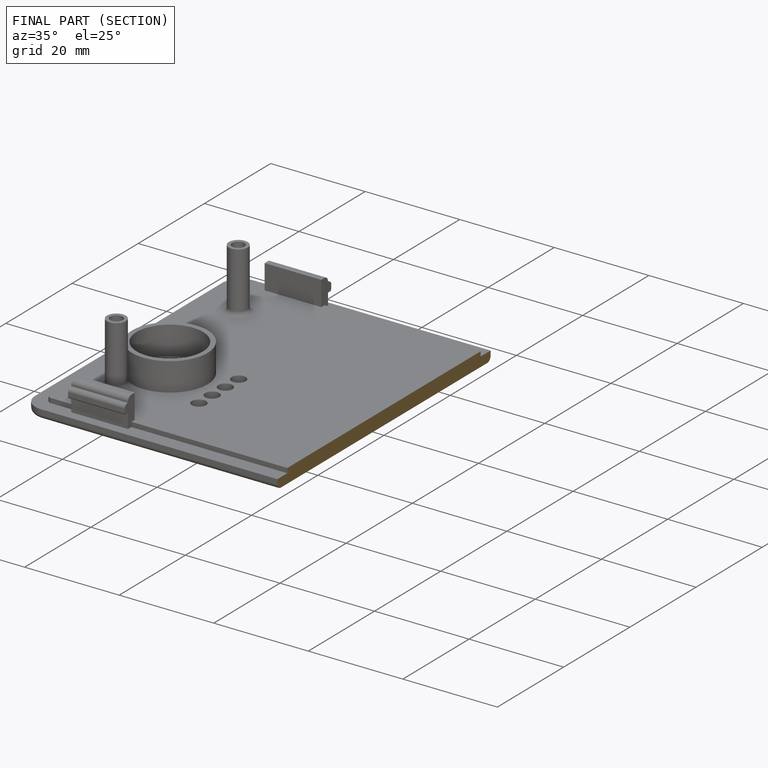
[diagram: finished part — half-section view (interior)]
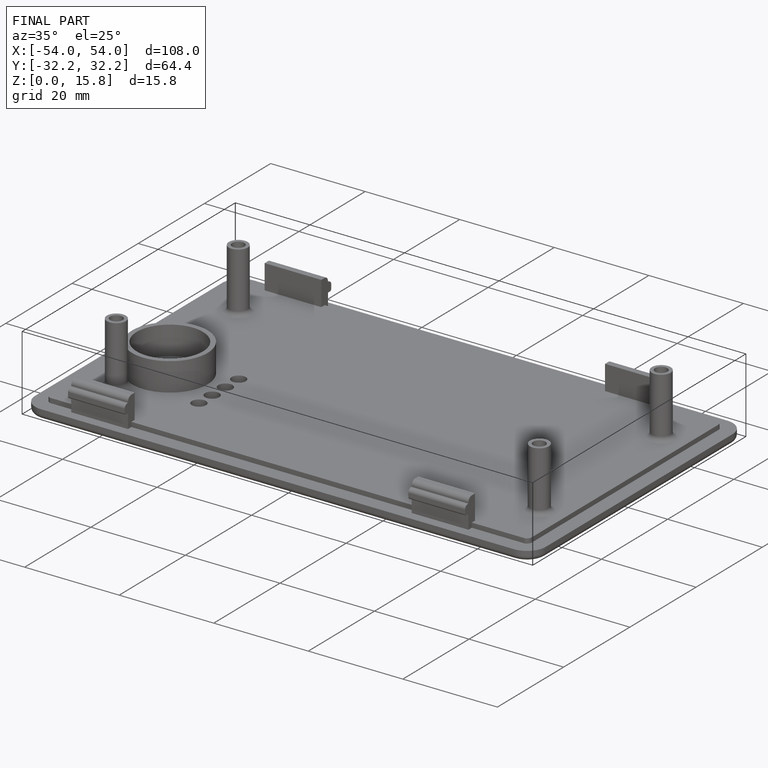
[diagram: finished part — iso view with bounding-box wireframe]
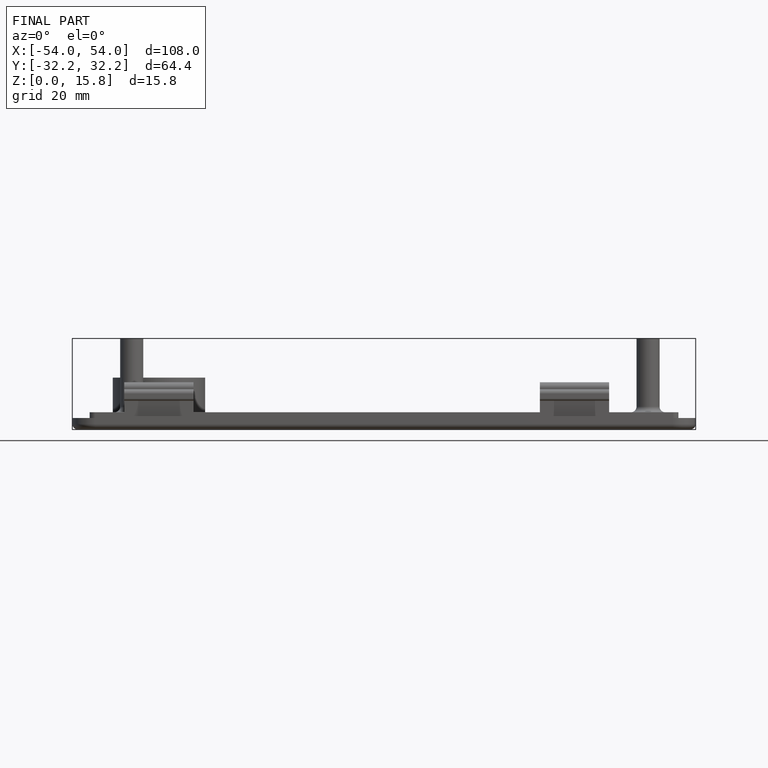
[diagram: finished part — front view with bounding-box wireframe]
